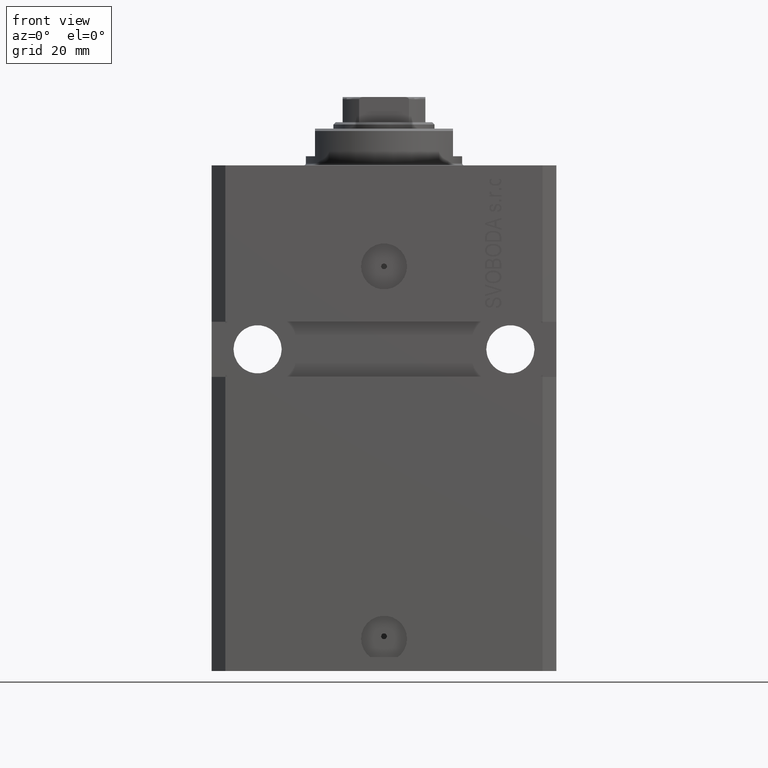
[diagram: clean part render]
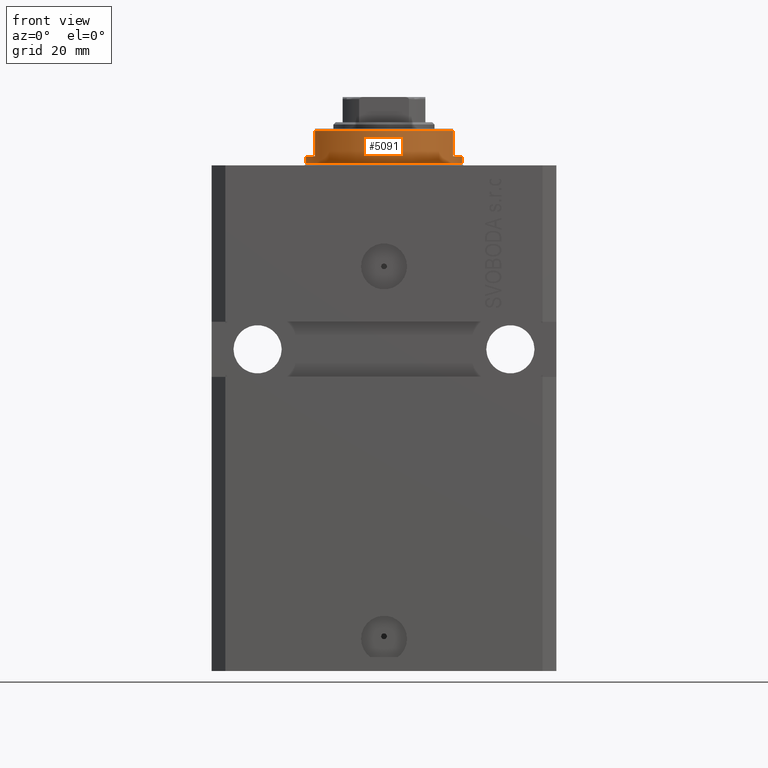
[diagram: same view with one face highlighted and labeled with its STEP entity id]
A machine part, front view. The second image highlights one B-rep face of the part: STEP entity #5091.
In plain terms, the highlighted cylindrical surface (partial cylindrical patch) has radius 17 mm, axis along (0, 0, -1).
Its self-contained STEP definition (entity closure, byte-faithful):
#177 = VERTEX_POINT ( 'NONE', #37633 ) ;
#2973 = DIRECTION ( 'NONE',  ( -1.000000000000000000, 0.000000000000000000, 0.000000000000000000 ) ) ;
#3123 = CARTESIAN_POINT ( 'NONE',  ( 0.000000000000000000, 0.000000000000000000, -8.000000000000000000 ) ) ;
#3136 = DIRECTION ( 'NONE',  ( -0.000000000000000000, -0.000000000000000000, 1.000000000000000000 ) ) ;
#3450 = DIRECTION ( 'NONE',  ( 1.000000000000000000, 0.000000000000000000, 0.000000000000000000 ) ) ;
#4023 = CARTESIAN_POINT ( 'NONE',  ( 17.00000000000000000, 0.000000000000000000, -8.000000000000000000 ) ) ;
#4287 = AXIS2_PLACEMENT_3D ( 'NONE', #22178, #7943, #40166 ) ;
#5091 = ADVANCED_FACE ( 'NONE', ( #6175 ), #7129, .T. ) ;
#5970 = CARTESIAN_POINT ( 'NONE',  ( 17.00000000000000000, 0.000000000000000000, -2.000000000000000000 ) ) ;
#6175 = FACE_OUTER_BOUND ( 'NONE', #32608, .T. ) ;
#6453 = VERTEX_POINT ( 'NONE', #43356 ) ;
#7129 = CYLINDRICAL_SURFACE ( 'NONE', #46537, 17.00000000000000000 ) ;
#7539 = AXIS2_PLACEMENT_3D ( 'NONE', #10626, #36197, #35506 ) ;
#7724 = VERTEX_POINT ( 'NONE', #32420 ) ;
#7943 = DIRECTION ( 'NONE',  ( 0.000000000000000000, 0.000000000000000000, -1.000000000000000000 ) ) ;
#8033 = EDGE_CURVE ( 'NONE', #31794, #177, #45091, .T. ) ;
#8738 = ORIENTED_EDGE ( 'NONE', *, *, #19896, .T. ) ;
#10626 = CARTESIAN_POINT ( 'NONE',  ( 0.000000000000000000, 0.000000000000000000, -7.500000000000013323 ) ) ;
#10708 = LINE ( 'NONE', #24234, #40486 ) ;
#11135 = ORIENTED_EDGE ( 'NONE', *, *, #24187, .T. ) ;
#12765 = CIRCLE ( 'NONE', #39266, 17.00000000000000000 ) ;
#13569 = LINE ( 'NONE', #37730, #36184 ) ;
#14253 = DIRECTION ( 'NONE',  ( 1.000000000000000000, 0.000000000000000000, 0.000000000000000000 ) ) ;
#15925 = CARTESIAN_POINT ( 'NONE',  ( -15.00000000000000000, -8.000000000000001776, -8.000000000000000000 ) ) ;
#16138 = CARTESIAN_POINT ( 'NONE',  ( -14.99999999999999645, -8.000000000000003553, -2.000000000000000000 ) ) ;
#16189 = DIRECTION ( 'NONE',  ( 0.000000000000000000, 0.000000000000000000, -1.000000000000000000 ) ) ;
#16717 = DIRECTION ( 'NONE',  ( 0.000000000000000000, 0.000000000000000000, -1.000000000000000000 ) ) ;
#16991 = VERTEX_POINT ( 'NONE', #5970 ) ;
#17022 = EDGE_CURVE ( 'NONE', #7724, #27203, #13569, .T. ) ;
#17130 = EDGE_CURVE ( 'NONE', #16991, #6453, #44053, .T. ) ;
#17730 = EDGE_CURVE ( 'NONE', #16991, #7724, #12765, .T. ) ;
#19149 = AXIS2_PLACEMENT_3D ( 'NONE', #28359, #43252, #3450 ) ;
#19896 = EDGE_CURVE ( 'NONE', #24317, #27203, #36327, .T. ) ;
#20306 = ORIENTED_EDGE ( 'NONE', *, *, #17730, .F. ) ;
#21596 = ORIENTED_EDGE ( 'NONE', *, *, #36630, .T. ) ;
#22178 = CARTESIAN_POINT ( 'NONE',  ( 0.000000000000000000, 0.000000000000000000, -2.000000000000000000 ) ) ;
#22654 = CARTESIAN_POINT ( 'NONE',  ( -15.00000000000000000, -8.000000000000001776, -7.500000000000014211 ) ) ;
#22828 = LINE ( 'NONE', #15925, #33774 ) ;
#24187 = EDGE_CURVE ( 'NONE', #6453, #38371, #27466, .T. ) ;
#24234 = CARTESIAN_POINT ( 'NONE',  ( -17.00000000000000000, 2.081899558550500280E-15, -8.000000000000000000 ) ) ;
#24317 = VERTEX_POINT ( 'NONE', #22654 ) ;
#25117 = ORIENTED_EDGE ( 'NONE', *, *, #17022, .F. ) ;
#25422 = ORIENTED_EDGE ( 'NONE', *, *, #33849, .F. ) ;
#26008 = CARTESIAN_POINT ( 'NONE',  ( -17.00000000000000000, 2.081899558550500280E-15, -0.5000000000000004441 ) ) ;
#27203 = VERTEX_POINT ( 'NONE', #40299 ) ;
#27466 = CIRCLE ( 'NONE', #19149, 17.00000000000000000 ) ;
#28286 = DIRECTION ( 'NONE',  ( -0.000000000000000000, -0.000000000000000000, 1.000000000000000000 ) ) ;
#28359 = CARTESIAN_POINT ( 'NONE',  ( 0.000000000000000000, 0.000000000000000000, -0.5000000000000004441 ) ) ;
#31794 = VERTEX_POINT ( 'NONE', #16138 ) ;
#32420 = CARTESIAN_POINT ( 'NONE',  ( 14.99999999999999645, -8.000000000000003553, -2.000000000000000000 ) ) ;
#32608 = EDGE_LOOP ( 'NONE', ( #25422, #42249, #21596, #8738, #25117, #20306, #39124, #11135 ) ) ;
#33774 = VECTOR ( 'NONE', #34382, 1000.000000000000000 ) ;
#33849 = EDGE_CURVE ( 'NONE', #177, #38371, #10708, .T. ) ;
#33919 = VECTOR ( 'NONE', #28286, 1000.000000000000000 ) ;
#34382 = DIRECTION ( 'NONE',  ( 0.000000000000000000, 0.000000000000000000, -1.000000000000000000 ) ) ;
#35506 = DIRECTION ( 'NONE',  ( -1.000000000000000000, 0.000000000000000000, 0.000000000000000000 ) ) ;
#36184 = VECTOR ( 'NONE', #16189, 1000.000000000000000 ) ;
#36197 = DIRECTION ( 'NONE',  ( 0.000000000000000000, 0.000000000000000000, 1.000000000000000000 ) ) ;
#36327 = CIRCLE ( 'NONE', #7539, 17.00000000000000000 ) ;
#36630 = EDGE_CURVE ( 'NONE', #31794, #24317, #22828, .T. ) ;
#37633 = CARTESIAN_POINT ( 'NONE',  ( -17.00000000000000000, 2.081899558550500280E-15, -2.000000000000000000 ) ) ;
#37730 = CARTESIAN_POINT ( 'NONE',  ( 15.00000000000000000, -8.000000000000001776, -8.000000000000000000 ) ) ;
#38371 = VERTEX_POINT ( 'NONE', #26008 ) ;
#39124 = ORIENTED_EDGE ( 'NONE', *, *, #17130, .T. ) ;
#39266 = AXIS2_PLACEMENT_3D ( 'NONE', #45581, #16717, #2973 ) ;
#40166 = DIRECTION ( 'NONE',  ( -1.000000000000000000, 0.000000000000000000, 0.000000000000000000 ) ) ;
#40299 = CARTESIAN_POINT ( 'NONE',  ( 15.00000000000000000, -8.000000000000001776, -7.500000000000013323 ) ) ;
#40486 = VECTOR ( 'NONE', #3136, 1000.000000000000000 ) ;
#42249 = ORIENTED_EDGE ( 'NONE', *, *, #8033, .F. ) ;
#43252 = DIRECTION ( 'NONE',  ( -0.000000000000000000, -0.000000000000000000, -1.000000000000000000 ) ) ;
#43356 = CARTESIAN_POINT ( 'NONE',  ( 17.00000000000000000, 0.000000000000000000, -0.5000000000000004441 ) ) ;
#44053 = LINE ( 'NONE', #4023, #33919 ) ;
#45091 = CIRCLE ( 'NONE', #4287, 17.00000000000000000 ) ;
#45581 = CARTESIAN_POINT ( 'NONE',  ( 0.000000000000000000, 0.000000000000000000, -2.000000000000000000 ) ) ;
#46537 = AXIS2_PLACEMENT_3D ( 'NONE', #3123, #46695, #14253 ) ;
#46695 = DIRECTION ( 'NONE',  ( -0.000000000000000000, -0.000000000000000000, 1.000000000000000000 ) ) ;